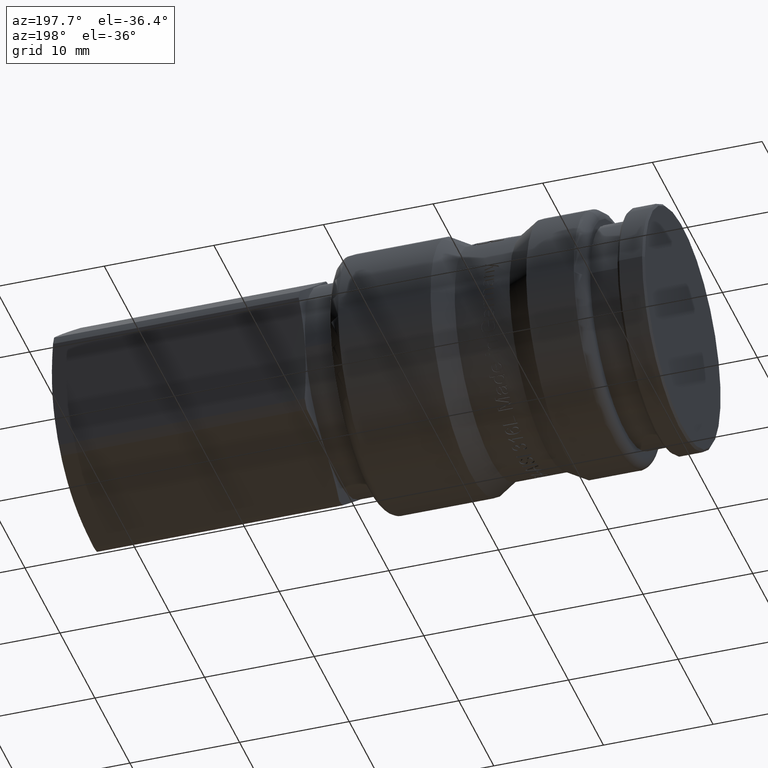
[diagram: clean part render]
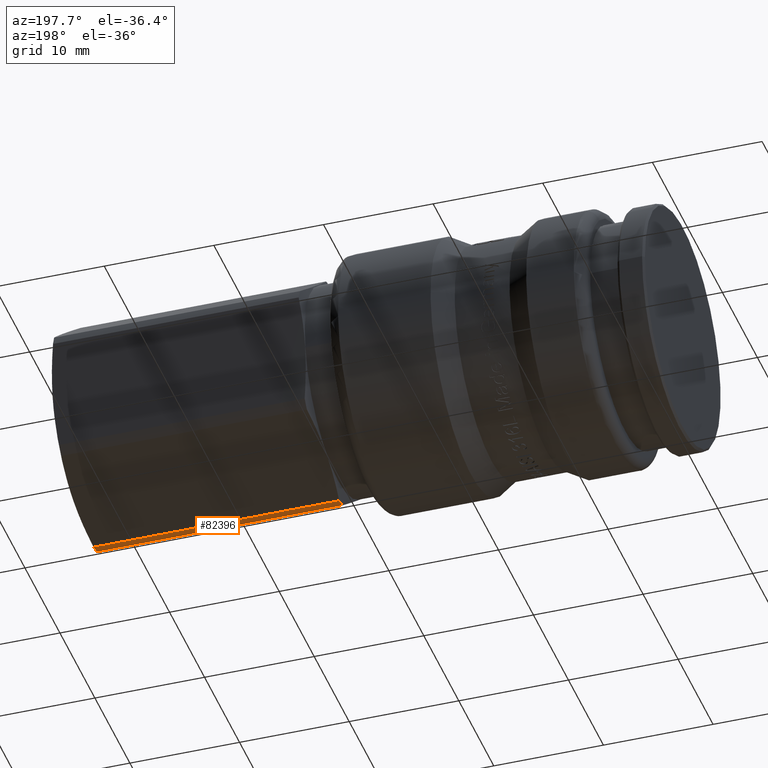
[diagram: same view with one face highlighted and labeled with its STEP entity id]
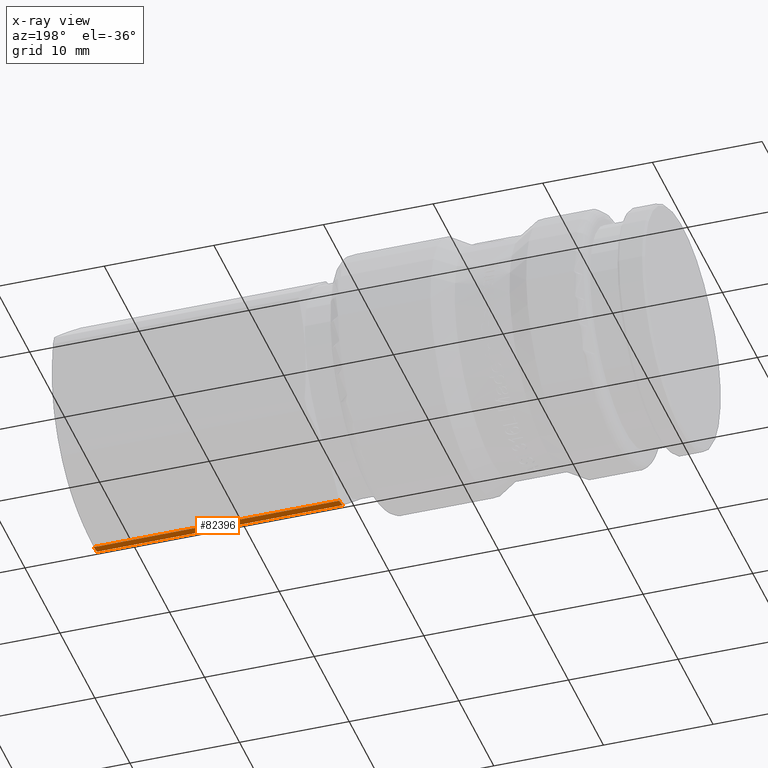
[diagram: x-ray of the same camera — body ghosted, the highlighted face saturated]
A machine part, auxiliary view. The second image highlights one B-rep face of the part: STEP entity #82396.
The next image is the same camera in x-ray: the body ghosted, the highlighted face saturated — about 0% of this face is hidden behind the body in this view.
In plain terms, the highlighted cylindrical surface (partial cylindrical patch) has radius 10.7 mm, axis along (-1, 0, -0).
Its self-contained STEP definition (entity closure, byte-faithful):
#82176=CARTESIAN_POINT('',(54.178460969082643,-2.347721103637913,-10.439262695206651));
#82177=VERTEX_POINT('',#82176);
#82191=CARTESIAN_POINT('',(54.178460969082643,-1.390303858874970,-10.609290983849833));
#82192=VERTEX_POINT('',#82191);
#82193=CARTESIAN_POINT('',(54.178460969082643,6.885283E-018,-1.585310E-032));
#82194=DIRECTION('',(-1.000000000000000,2.075882E-017,-3.686571E-018));
#82195=DIRECTION('',(2.108363E-017,0.984594253756042,-0.174854669570428));
#82196=AXIS2_PLACEMENT_3D('',#82193,#82194,#82195);
#82197=CIRCLE('',#82196,10.699999999999999);
#82198=EDGE_CURVE('',#82192,#82177,#82197,.T.);
#82365=CARTESIAN_POINT('',(42.978349364905384,2.467191E-016,-5.680612E-031));
#82366=DIRECTION('',(-1.0,2.141352E-017,-4.930381E-032));
#82367=DIRECTION('',(2.108363E-017,0.984594253756042,-0.174854669570428));
#82368=AXIS2_PLACEMENT_3D('',#82365,#82366,#82367);
#82369=CYLINDRICAL_SURFACE('',#82368,10.700000000000001);
#82370=CARTESIAN_POINT('',(31.778237760728118,-2.347721103637925,-10.439262695206644));
#82371=VERTEX_POINT('',#82370);
#82372=CARTESIAN_POINT('',(54.178460969082650,-2.347721103637916,-10.439262695206647));
#82373=DIRECTION('',(-1.0,0.0,0.0));
#82374=VECTOR('',#82373,22.400223208354525);
#82375=LINE('',#82372,#82374);
#82376=EDGE_CURVE('',#82177,#82371,#82375,.T.);
#82377=ORIENTED_EDGE('',*,*,#82376,.T.);
#82378=CARTESIAN_POINT('',(31.778237760728118,-1.390303858874957,-10.609290983849835));
#82379=VERTEX_POINT('',#82378);
#82380=CARTESIAN_POINT('',(31.778237760728118,4.865529E-016,-1.120269E-030));
#82381=DIRECTION('',(-1.000000000000000,2.075882E-017,-3.686571E-018));
#82382=DIRECTION('',(2.108363E-017,0.984594253756042,-0.174854669570428));
#82383=AXIS2_PLACEMENT_3D('',#82380,#82381,#82382);
#82384=CIRCLE('',#82383,10.699999999999999);
#82385=EDGE_CURVE('',#82379,#82371,#82384,.T.);
#82386=ORIENTED_EDGE('',*,*,#82385,.F.);
#82387=CARTESIAN_POINT('',(31.778237760728125,-1.390303858874964,-10.609290983849833));
#82388=DIRECTION('',(1.0,0.0,0.0));
#82389=VECTOR('',#82388,22.400223208354525);
#82390=LINE('',#82387,#82389);
#82391=EDGE_CURVE('',#82379,#82192,#82390,.T.);
#82392=ORIENTED_EDGE('',*,*,#82391,.T.);
#82393=ORIENTED_EDGE('',*,*,#82198,.T.);
#82394=EDGE_LOOP('',(#82377,#82386,#82392,#82393));
#82395=FACE_OUTER_BOUND('',#82394,.T.);
#82396=ADVANCED_FACE('',(#82395),#82369,.T.);